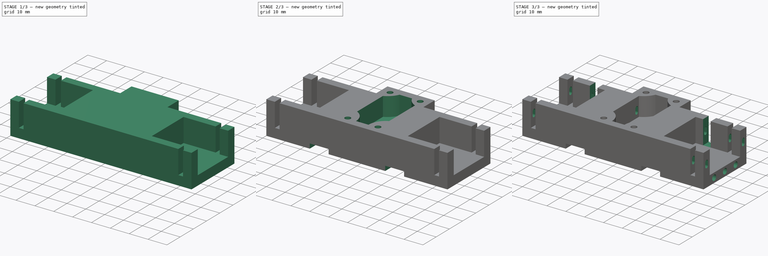
[diagram: build sequence overview — one tinted view per stage of 3, left to right]
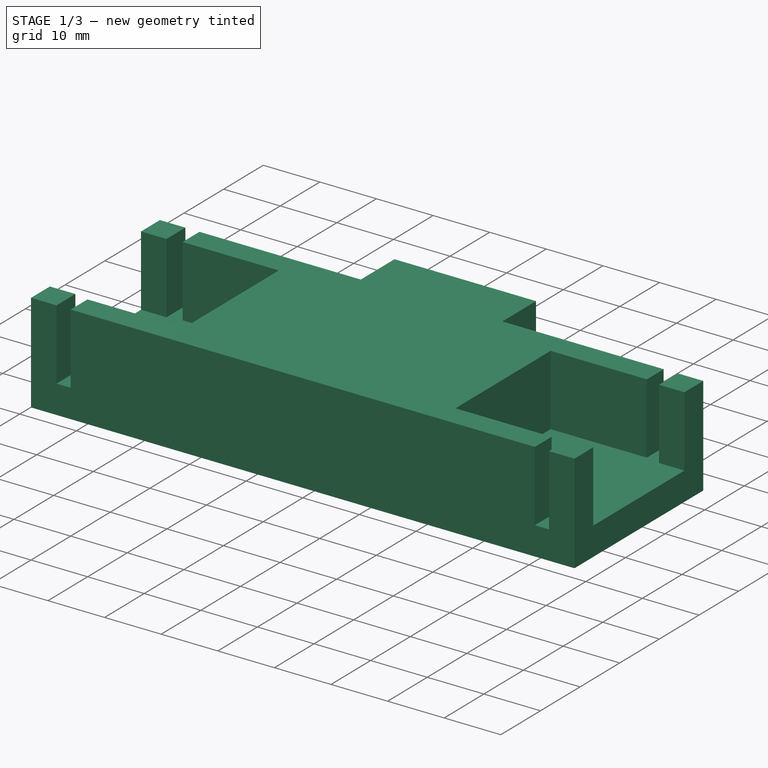
[diagram: stage 1 of 3 — iso view after this stage's code; geometry added in this stage tinted green]
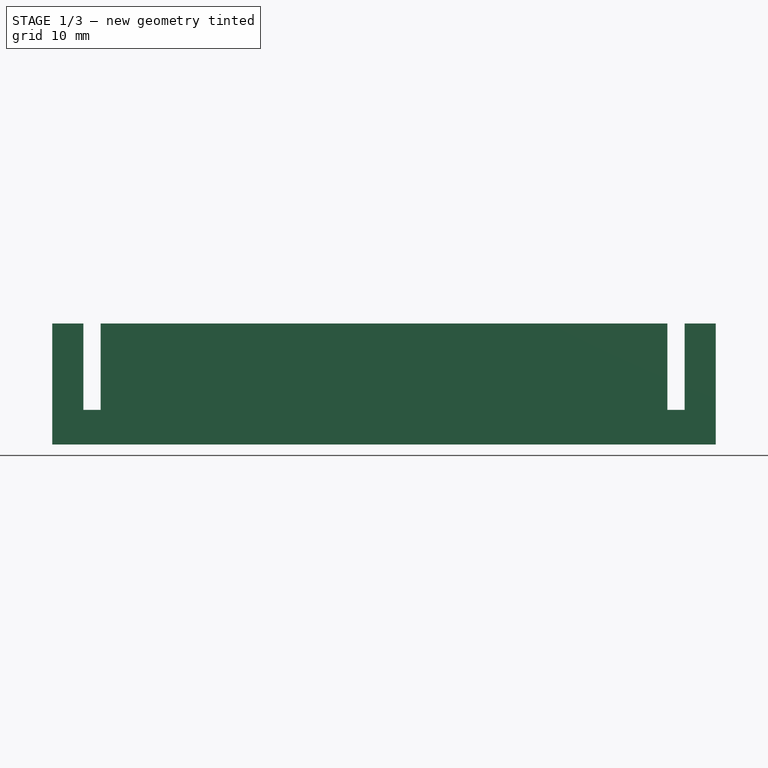
[diagram: stage 1 of 3 — front view after this stage's code; geometry added in this stage tinted green]
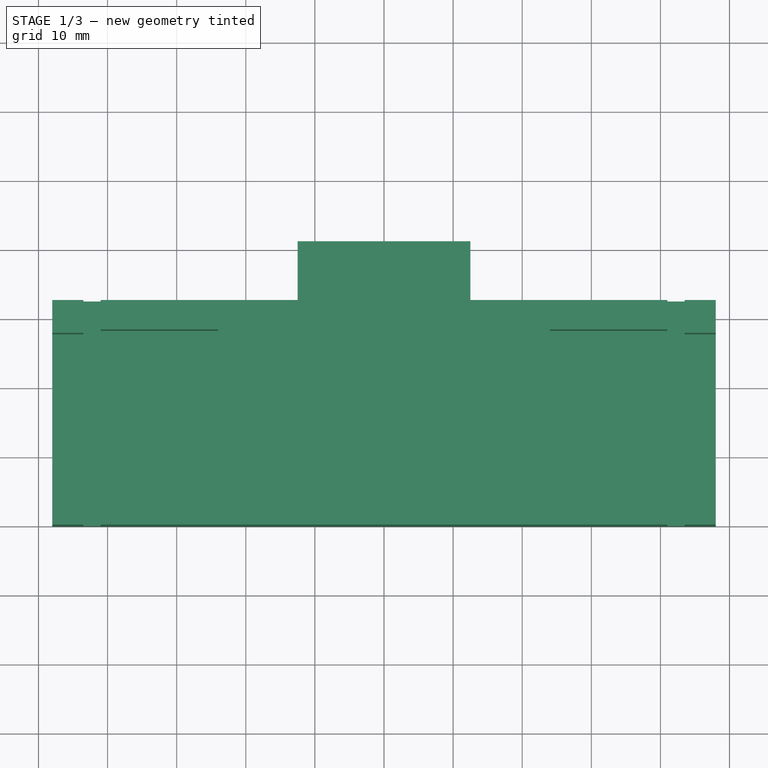
[diagram: stage 1 of 3 — top view after this stage's code; geometry added in this stage tinted green]
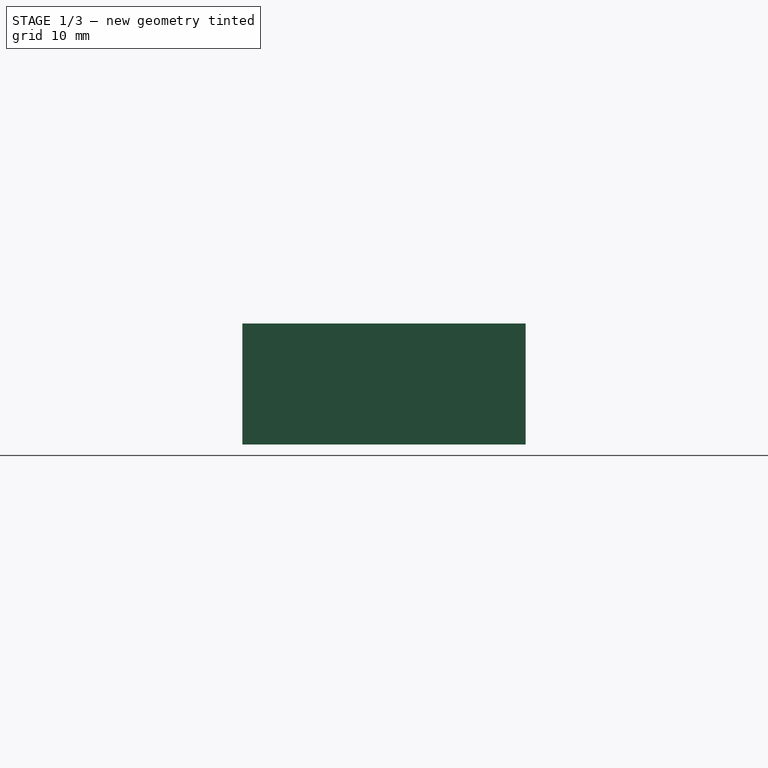
[diagram: stage 1 of 3 — right view after this stage's code; geometry added in this stage tinted green]
FCSTD DOCUMENT  (FreeCAD 0.21R33771 (Git))
Label: back-robot-plate
License: All rights reserved
LicenseURL: https://en.wikipedia.org/wiki/All_rights_reserved
objects: Sketcher::SketchObject×7, PartDesign::Pocket×6, PartDesign::Pad×1, PartDesign::Body×1
note: 22 computed .brp shape members not serialized (recipe doc carries the construction recipe); baked Part::Feature solids carry a one-line shape summary decoded from their .brp

FEATURE [Sketcher::SketchObject] Sketch
  FullyConstrained = true
  MapMode = 5
  Support = -> [XY_Plane]
  sketch-geometry (8):
    g0: LineSegment StartX=-48 StartY=0 StartZ=0 EndX=48 EndY=0 EndZ=0
    g1: LineSegment StartX=48 StartY=0 StartZ=0 EndX=48 EndY=32.5 EndZ=0
    g2: LineSegment StartX=48 StartY=32.5 StartZ=0 EndX=12.5 EndY=32.5 EndZ=0
    g3: LineSegment StartX=12.5 StartY=32.5 StartZ=0 EndX=12.5 EndY=41 EndZ=0
    g4: LineSegment StartX=12.5 StartY=41 StartZ=0 EndX=-12.5 EndY=41 EndZ=0
    g5: LineSegment StartX=-12.5 StartY=41 StartZ=0 EndX=-12.5 EndY=32.5 EndZ=0
    g6: LineSegment StartX=-12.5 StartY=32.5 StartZ=0 EndX=-48 EndY=32.5 EndZ=0
    g7: LineSegment StartX=-48 StartY=32.5 StartZ=0 EndX=-48 EndY=0 EndZ=0
  constraints (21):
    c: PointOnObject(g0,g-1)
    c: PointOnObject(g0,g-1)
    c: Coincident(g0,g1)
    c: Vertical(g1)
    c: Coincident(g1,g2)
    c: Horizontal(g2)
    c: Coincident(g2,g3)
    c: Vertical(g3)
    c: Coincident(g3,g4)
    c: Coincident(g4,g5)
    c: Coincident(g5,g6)
    c: Coincident(g6,g7)
    c: Vertical(g7)
    c: Coincident(g0,g7)
    c: Symmetric(g4,g3,g-2)
    c: Symmetric(g5,g2,g-2)
    c: Symmetric(g6,g1,g-2)
    c: DistanceX(g4,g4) = 25
    c: DistanceX(g0,g0) = 96
    c: DistanceY(g1,g1) = 32.5
    c: DistanceY(g0,g4) = 41
FEATURE [PartDesign::Pad] Pad
  Direction = (0,0,1)
  Length = 17.5
  Length2 = 10
  Profile = -> Sketch
  ReferenceAxis = -> Sketch [N_Axis]
  Type = 0
FEATURE [Sketcher::SketchObject] Sketch001
  ExternalGeometry = -> [Pad]
  FullyConstrained = true
  MapMode = 5
  Placement = pos=(0,0,17.5) rot=(0,0,1;0rad)
  Support = -> [Pad]
  sketch-geometry (24):
    g0: LineSegment StartX=-48 StartY=27.75 StartZ=0 EndX=-43.5 EndY=27.75 EndZ=0
    g1: LineSegment StartX=-43.5 StartY=27.75 StartZ=0 EndX=-43.5 EndY=32.5 EndZ=0
    g2: LineSegment StartX=-43.5 StartY=32.5 StartZ=0 EndX=-41 EndY=32.5 EndZ=0
    g3: LineSegment StartX=-41 StartY=32.5 StartZ=0 EndX=-41 EndY=28.25 EndZ=0
    g4: LineSegment StartX=-41 StartY=28.25 StartZ=0 EndX=-24 EndY=28.25 EndZ=0
    g5: LineSegment StartX=-24 StartY=28.25 StartZ=0 EndX=-24 EndY=4.25 EndZ=0
    g6: LineSegment StartX=-24 StartY=4.25 StartZ=0 EndX=-41 EndY=4.25 EndZ=0
    g7: LineSegment StartX=-41 StartY=4.25 StartZ=0 EndX=-41 EndY=0 EndZ=0
    g8: LineSegment StartX=-41 StartY=0 StartZ=0 EndX=-43.5 EndY=0 EndZ=0
    g9: LineSegment StartX=-43.5 StartY=0 StartZ=0 EndX=-43.5 EndY=4.75 EndZ=0
    g10: LineSegment StartX=-43.5 StartY=4.75 StartZ=0 EndX=-48 EndY=4.75 EndZ=0
    g11: LineSegment StartX=-48 StartY=4.75 StartZ=0 EndX=-48 EndY=27.75 EndZ=0
    g12: LineSegment StartX=24 StartY=28.25 StartZ=0 EndX=41 EndY=28.25 EndZ=0
    g13: LineSegment StartX=41 StartY=28.25 StartZ=0 EndX=41 EndY=32.5 EndZ=0
    g14: LineSegment StartX=41 StartY=32.5 StartZ=0 EndX=43.5 EndY=32.5 EndZ=0
    g15: LineSegment StartX=43.5 StartY=32.5 StartZ=0 EndX=43.5 EndY=27.75 EndZ=0
    g16: LineSegment StartX=43.5 StartY=27.75 StartZ=0 EndX=48 EndY=27.75 EndZ=0
    g17: LineSegment StartX=48 StartY=27.75 StartZ=0 EndX=48 EndY=4.75 EndZ=0
    g18: LineSegment StartX=48 StartY=4.75 StartZ=0 EndX=43.5 EndY=4.75 EndZ=0
    g19: LineSegment StartX=43.5 StartY=4.75 StartZ=0 EndX=43.5 EndY=0 EndZ=0
    g20: LineSegment StartX=43.5 StartY=0 StartZ=0 EndX=41 EndY=0 EndZ=0
    g21: LineSegment StartX=41 StartY=0 StartZ=0 EndX=41 EndY=4.25 EndZ=0
    g22: LineSegment StartX=41 StartY=4.25 StartZ=0 EndX=24 EndY=4.25 EndZ=0
    g23: LineSegment StartX=24 StartY=4.25 StartZ=0 EndX=24 EndY=28.25 EndZ=0
  constraints (72):
    c: PointOnObject(g0,g-3)
    c: Horizontal(g0)
    c: Coincident(g0,g1)
    c: PointOnObject(g1,g-4)
    c: Vertical(g1)
    c: Coincident(g1,g2)
    c: PointOnObject(g2,g-4)
    c: Coincident(g2,g3)
    c: Vertical(g3)
    c: Coincident(g3,g4)
    c: Horizontal(g4)
    c: Coincident(g4,g5)
    c: Vertical(g5)
    c: Coincident(g5,g6)
    c: Horizontal(g6)
    c: Coincident(g6,g7)
    c: PointOnObject(g7,g-1)
    c: Vertical(g7)
    c: Coincident(g7,g8)
    c: PointOnObject(g8,g-1)
    c: Coincident(g8,g9)
    c: Vertical(g9)
    c: Coincident(g9,g10)
    c: PointOnObject(g10,g-3)
    c: Horizontal(g10)
    c: Coincident(g10,g11)
    c: Coincident(g11,g0)
    c: DistanceX(g-4,g1) = 4.5
    c: DistanceX(g2,g2) = 2.5
    c: DistanceX(g4,g4) = 17
    c: Equal(g0,g10)
    c: Equal(g2,g8)
    c: DistanceY(g5,g5) = 24
    c: DistanceY(g11,g11) = 23
    c: Equal(g1,g9)
    c: Equal(g3,g7)
    c: Horizontal(g12)
    c: Coincident(g12,g13)
    c: PointOnObject(g13,g-5)
    c: Coincident(g13,g14)
    c: PointOnObject(g14,g-5)
    c: Coincident(g14,g15)
    c: Vertical(g15)
    c: Coincident(g15,g16)
    c: PointOnObject(g16,g-6)
    c: Coincident(g16,g17)
    c: PointOnObject(g17,g-6)
    c: Coincident(g17,g18)
    c: Coincident(g18,g19)
    c: PointOnObject(g19,g-1)
    c: Coincident(g19,g20)
    c: PointOnObject(g20,g-1)
    c: Coincident(g20,g21)
    c: Coincident(g21,g22)
    c: Horizontal(g22)
    c: Coincident(g22,g23)
    c: Coincident(g23,g12)
    c: Vertical(g23)
    c: Vertical(g21)
    c: Vertical(g19)
    c: Vertical(g13)
    c: Horizontal(g16)
    c: Horizontal(g18)
    c: Equal(g13,g21)
    c: DistanceY(g23,g23) = 24
    c: Equal(g19,g15)
    c: DistanceY(g17,g17) = 23
    c: DistanceX(g14,g-6) = 4.5
    c: DistanceX(g14,g14) = 2.5
    c: DistanceX(g12,g12) = 17
    c: Equal(g22,g12)
    c: Equal(g18,g16)
FEATURE [PartDesign::Pocket] Pocket
  BaseFeature = -> Pad
  Direction = (0,0,-1)
  Length = 12.5
  Length2 = 5
  Profile = -> Sketch001
  ReferenceAxis = -> Sketch001 [N_Axis]
  Type = 0
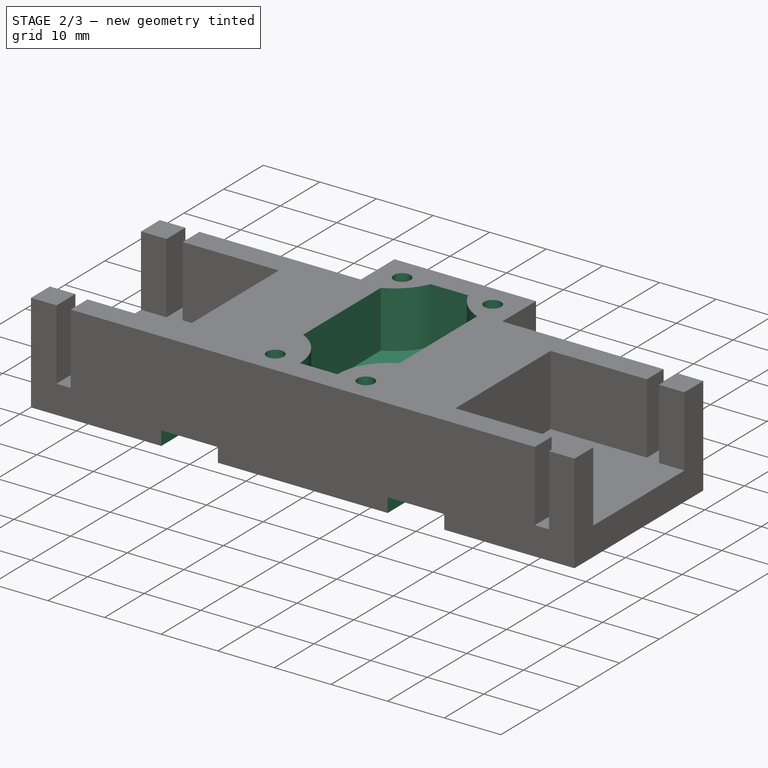
[diagram: stage 2 of 3 — iso view after this stage's code; geometry added in this stage tinted green]
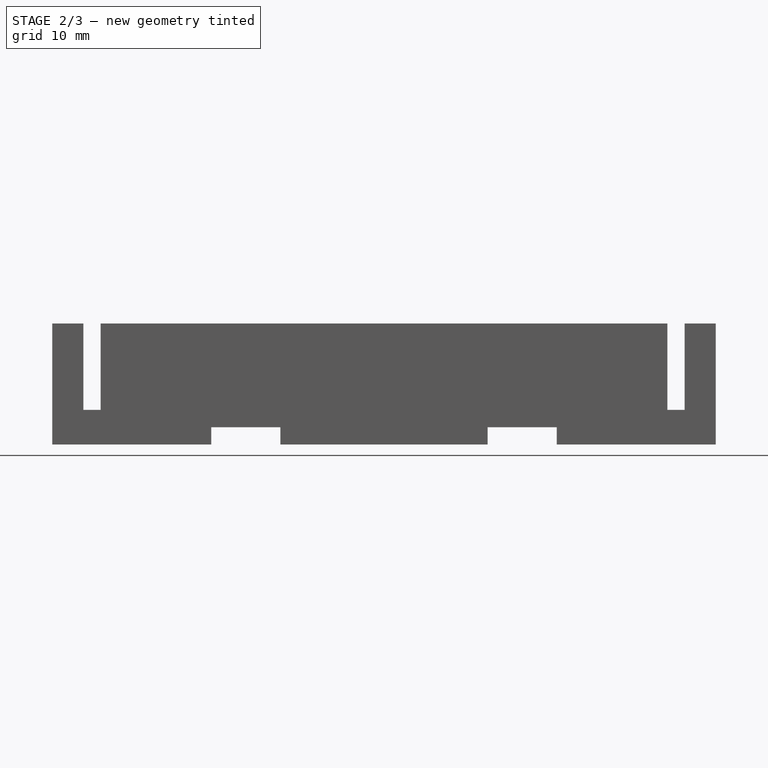
[diagram: stage 2 of 3 — front view after this stage's code; geometry added in this stage tinted green]
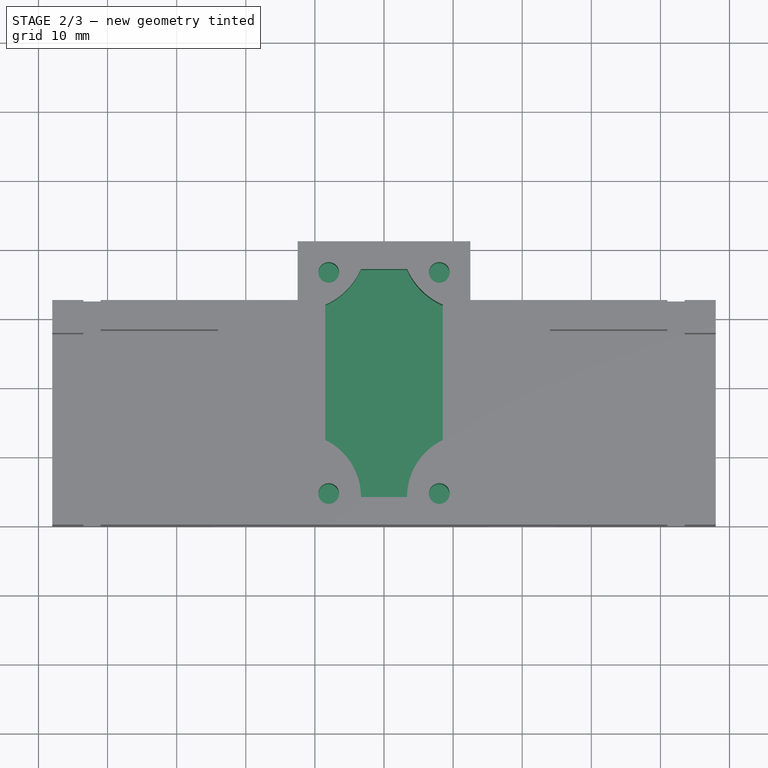
[diagram: stage 2 of 3 — top view after this stage's code; geometry added in this stage tinted green]
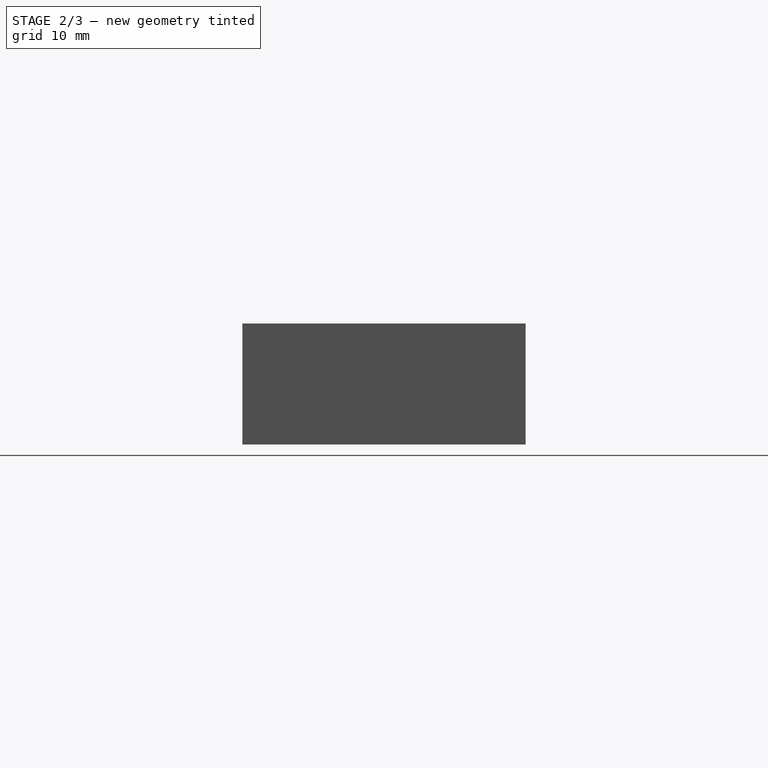
[diagram: stage 2 of 3 — right view after this stage's code; geometry added in this stage tinted green]
FEATURE [Sketcher::SketchObject] Sketch002
  ExternalGeometry = -> [Pocket]
  FullyConstrained = true
  MapMode = 5
  Placement = pos=(0,0,17.5) rot=(0,0,1;0rad)
  Support = -> [Pocket]
  sketch-geometry (8):
    g0: ArcOfCircle CenterX=-12.5 CenterY=41 CenterZ=0 NormalX=0 NormalY=0 NormalZ=1 AngleXU=0 Radius=10 StartAngle=5.12391 EndAngle=5.87167
    g1: ArcOfCircle CenterX=12.5 CenterY=41 CenterZ=0 NormalX=0 NormalY=0 NormalZ=1 AngleXU=0 Radius=10 StartAngle=3.55311 EndAngle=4.30087
    g2: LineSegment StartX=-3.33485 StartY=37 StartZ=0 EndX=3.33485 EndY=37 EndZ=0
    g3: LineSegment StartX=-8.5 StartY=31.8348 StartZ=0 EndX=-8.5 EndY=12.2462 EndZ=0
    g4: LineSegment StartX=8.5 StartY=31.8348 StartZ=0 EndX=8.5 EndY=12.2462 EndZ=0
    g5: ArcOfCircle CenterX=-12.5 CenterY=4 CenterZ=0 NormalX=0 NormalY=0 NormalZ=1 AngleXU=0 Radius=9.16515 StartAngle=-4.53e-14 EndAngle=1.11916
    g6: ArcOfCircle CenterX=12.5 CenterY=4 CenterZ=0 NormalX=0 NormalY=0 NormalZ=1 AngleXU=0 Radius=9.16515 StartAngle=2.02243 EndAngle=3.14159
    g7: LineSegment StartX=-3.33485 StartY=4 StartZ=0 EndX=3.33485 EndY=4 EndZ=0
  constraints (24):
    c: Coincident(g1,g-5)
    c: Coincident(g2,g0)
    c: Coincident(g2,g1)
    c: Horizontal(g2)
    c: Coincident(g3,g0)
    c: Vertical(g3)
    c: Coincident(g4,g1)
    c: Vertical(g4)
    c: Coincident(g5,g3)
    c: Coincident(g4,g6)
    c: Coincident(g7,g5)
    c: Coincident(g7,g6)
    c: Coincident(g0,g-4)
    c: Radius(g0) = 10
    c: Radius(g1) = 10
    c: DistanceY(g0,g0) = 4
    c: DistanceY(g5,g0) = 37
    c: Equal(g7,g2)
    c: Symmetric(g5,g6,g-2)
    c: Symmetric(g4,g3,g-2)
    c: DistanceX(g-4,g0) = 4
    c: DistanceX(g0,g5) = 0
    c: DistanceX(g-5,g6) = 0
    c: DistanceY(g-1,g6) = 4
FEATURE [PartDesign::Pocket] Pocket001
  BaseFeature = -> Pocket
  Direction = (0,0,-1)
  Length = 10
  Length2 = 5
  Profile = -> Sketch002
  ReferenceAxis = -> Sketch002 [N_Axis]
  Type = 0
FEATURE [Sketcher::SketchObject] Sketch003
  FullyConstrained = true
  MapMode = 5
  Placement = pos=(0,0,17.5) rot=(0,0,1;0rad)
  Support = -> [Pocket001]
  sketch-geometry (4):
    g0: Circle CenterX=-8 CenterY=36.5 CenterZ=0 NormalX=0 NormalY=0 NormalZ=1 AngleXU=0 Radius=1.5
    g1: Circle CenterX=8 CenterY=36.5 CenterZ=0 NormalX=0 NormalY=0 NormalZ=1 AngleXU=0 Radius=1.5
    g2: Circle CenterX=-8 CenterY=4.5 CenterZ=0 NormalX=0 NormalY=0 NormalZ=1 AngleXU=0 Radius=1.5
    g3: Circle CenterX=8 CenterY=4.5 CenterZ=0 NormalX=0 NormalY=0 NormalZ=1 AngleXU=0 Radius=1.5
  constraints (10):
    c: Symmetric(g0,g1,g-2)
    c: Symmetric(g2,g3,g-2)
    c: DistanceX(g0,g1) = 16
    c: DistanceX(g2,g3) = 16
    c: DistanceY(g3,g1) = 32
    c: Equal(g0,g1)
    c: Equal(g1,g3)
    c: Equal(g3,g2)
    c: Diameter(g0) = 3
    c: DistanceY(g-1,g2) = 4.5
FEATURE [PartDesign::Pocket] Pocket002
  BaseFeature = -> Pocket001
  Direction = (0,0,-1)
  Length = 10
  Length2 = 5
  Profile = -> Sketch003
  ReferenceAxis = -> Sketch003 [N_Axis]
  Type = 0
FEATURE [Sketcher::SketchObject] Sketch004
  FullyConstrained = true
  MapMode = 5
  Placement = pos=(0,0,0) rot=(1,0,0;1.5708rad)
  Support = -> [Pocket002]
  sketch-geometry (8):
    g0: LineSegment StartX=-25 StartY=0 StartZ=0 EndX=-15 EndY=0 EndZ=0
    g1: LineSegment StartX=-15 StartY=0 StartZ=0 EndX=-15 EndY=2.5 EndZ=0
    g2: LineSegment StartX=-15 StartY=2.5 StartZ=0 EndX=-25 EndY=2.5 EndZ=0
    g3: LineSegment StartX=-25 StartY=2.5 StartZ=0 EndX=-25 EndY=0 EndZ=0
    g4: LineSegment StartX=15 StartY=0 StartZ=0 EndX=25 EndY=0 EndZ=0
    g5: LineSegment StartX=25 StartY=0 StartZ=0 EndX=25 EndY=2.5 EndZ=0
    g6: LineSegment StartX=25 StartY=2.5 StartZ=0 EndX=15 EndY=2.5 EndZ=0
    g7: LineSegment StartX=15 StartY=2.5 StartZ=0 EndX=15 EndY=0 EndZ=0
  constraints (22):
    c: Coincident(g0,g1)
    c: Coincident(g1,g2)
    c: Coincident(g2,g3)
    c: Coincident(g3,g0)
    c: Horizontal(g0)
    c: Horizontal(g2)
    c: Vertical(g1)
    c: Vertical(g3)
    c: PointOnObject(g0,g-1)
    c: Coincident(g4,g5)
    c: Coincident(g5,g6)
    c: Coincident(g6,g7)
    c: Coincident(g7,g4)
    c: Horizontal(g4)
    c: Horizontal(g6)
    c: Vertical(g5)
    c: Vertical(g7)
    c: Symmetric(g0,g4,g-2)
    c: DistanceY(g5,g5) = 2.5
    c: DistanceX(g2,g2) = 10
    c: Symmetric(g1,g6,g-2)
    c: DistanceX(g1,g6) = 30
FEATURE [PartDesign::Pocket] Pocket003
  BaseFeature = -> Pocket002
  Direction = (0,1,-2e-16)
  Length = 5
  Length2 = 5
  Profile = -> Sketch004
  ReferenceAxis = -> Sketch004 [N_Axis]
  Type = 1
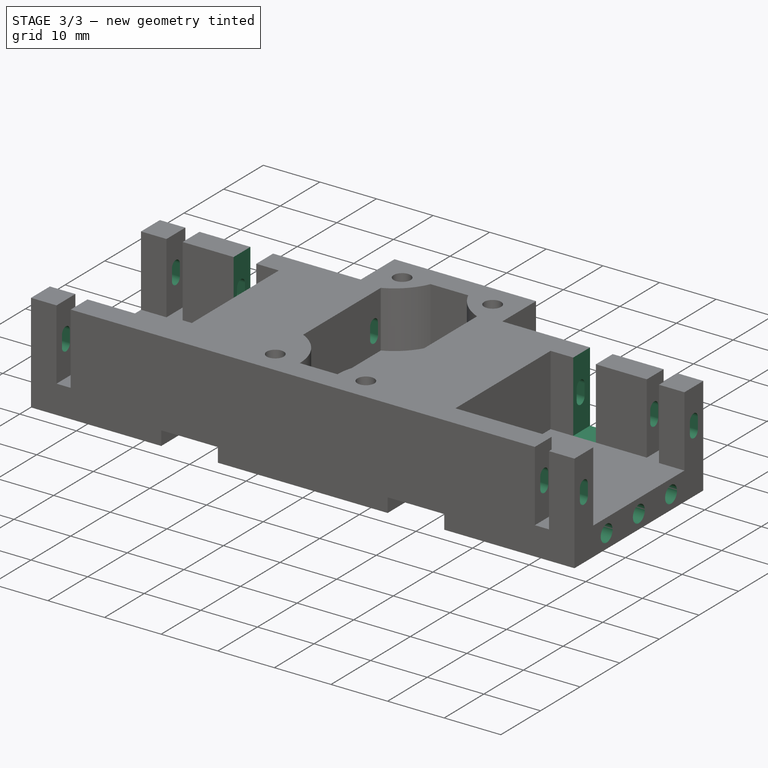
[diagram: stage 3 of 3 — iso view after this stage's code; geometry added in this stage tinted green]
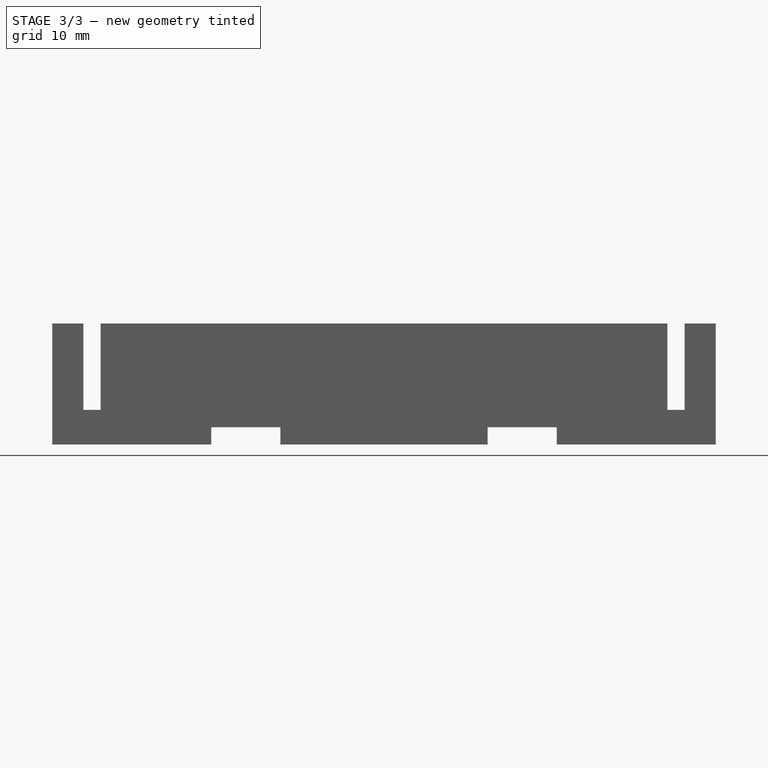
[diagram: stage 3 of 3 — front view after this stage's code; geometry added in this stage tinted green]
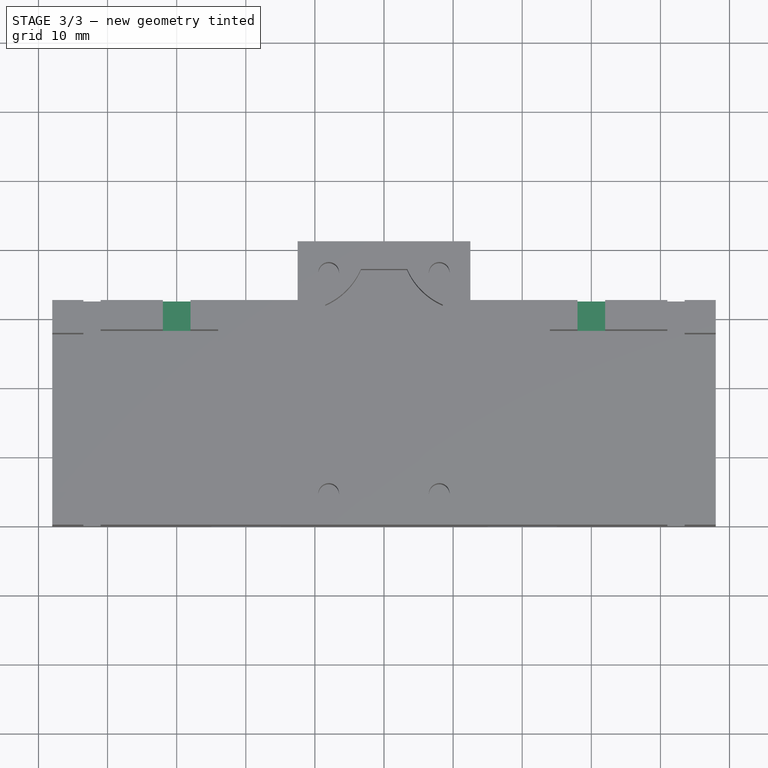
[diagram: stage 3 of 3 — top view after this stage's code; geometry added in this stage tinted green]
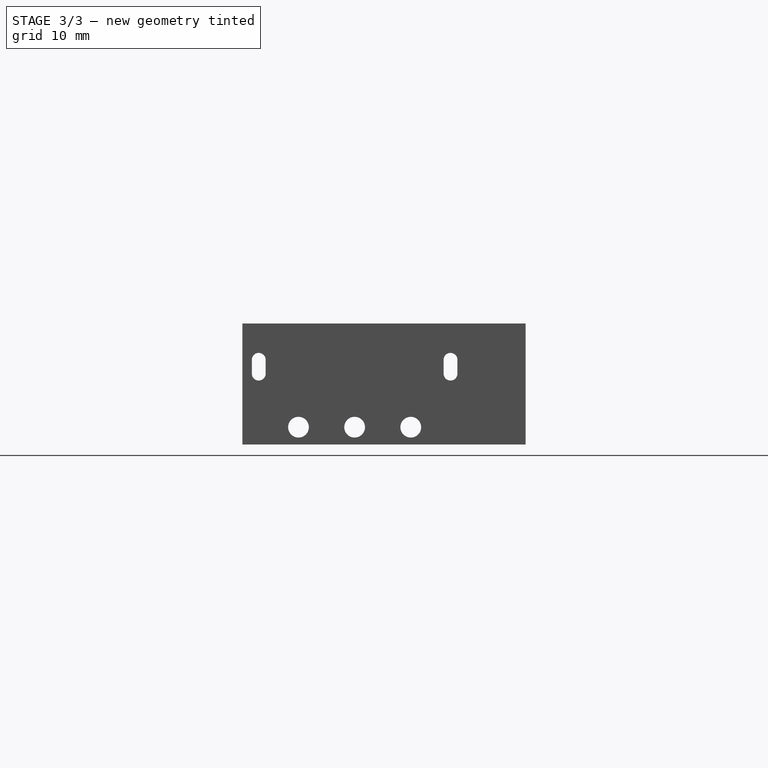
[diagram: stage 3 of 3 — right view after this stage's code; geometry added in this stage tinted green]
FEATURE [Sketcher::SketchObject] Sketch010
  ExternalGeometry = -> [Pocket003]
  FullyConstrained = true
  MapMode = 5
  Placement = pos=(0,0,17.5) rot=(0,0,1;0rad)
  sketch-geometry (8):
    g0: LineSegment StartX=-28 StartY=32.5 StartZ=0 EndX=-32 EndY=32.5 EndZ=0
    g1: LineSegment StartX=-32 StartY=32.5 StartZ=0 EndX=-32 EndY=28.25 EndZ=0
    g2: LineSegment StartX=-32 StartY=28.25 StartZ=0 EndX=-28 EndY=28.25 EndZ=0
    g3: LineSegment StartX=-28 StartY=28.25 StartZ=0 EndX=-28 EndY=32.5 EndZ=0
    g4: LineSegment StartX=28 StartY=32.5 StartZ=0 EndX=32 EndY=32.5 EndZ=0
    g5: LineSegment StartX=32 StartY=32.5 StartZ=0 EndX=32 EndY=28.25 EndZ=0
    g6: LineSegment StartX=32 StartY=28.25 StartZ=0 EndX=28 EndY=28.25 EndZ=0
    g7: LineSegment StartX=28 StartY=28.25 StartZ=0 EndX=28 EndY=32.5 EndZ=0
  constraints (23):
    c: Coincident(g1,g2)
    c: Coincident(g2,g3)
    c: Coincident(g3,g0)
    c: Horizontal(g0)
    c: Horizontal(g2)
    c: Vertical(g1)
    c: Vertical(g3)
    c: Coincident(g4,g5)
    c: Coincident(g5,g6)
    c: Coincident(g6,g7)
    c: Horizontal(g4)
    c: Horizontal(g6)
    c: Vertical(g5)
    c: Vertical(g7)
    c: DistanceX(g4,g4) = 4
    c: Coincident(g4,g7)
    c: Equal(g0,g4)
    c: Coincident(g0,g1)
    c: Symmetric(g0,g4,g-2)
    c: PointOnObject(g0,g-4)
    c: PointOnObject(g2,g-3)
    c: DistanceX(g-4,g0) = 9
    c: PointOnObject(g6,g-6)
FEATURE [PartDesign::Pocket] Pocket008
  BaseFeature = -> Pocket003
  Direction = (0,0,-1)
  Length = 12.5
  Length2 = 5
  Profile = -> Sketch010
  ReferenceAxis = -> Sketch010 [N_Axis]
  Type = 0
FEATURE [Sketcher::SketchObject] Sketch011
  ExternalGeometry = -> [Pocket008]
  FullyConstrained = true
  MapMode = 5
  Placement = pos=(48,0,0) rot=(0.57735,0.57735,0.57735;2.0944rad)
  Support = -> [Pocket008]
  sketch-geometry (17):
    g0: Circle CenterX=8.125 CenterY=2.5 CenterZ=0 NormalX=0 NormalY=0 NormalZ=1 AngleXU=0 Radius=1.5
    g1: Circle CenterX=16.25 CenterY=2.5 CenterZ=0 NormalX=0 NormalY=0 NormalZ=1 AngleXU=0 Radius=1.5
    g2: Circle CenterX=24.375 CenterY=2.5 CenterZ=0 NormalX=0 NormalY=0 NormalZ=1 AngleXU=0 Radius=1.5
    g3: LineSegment StartX=16.25 StartY=5 StartZ=0 EndX=16.25 EndY=0 EndZ=0
    g4: LineSegment StartX=0 StartY=2.5 StartZ=0 EndX=32.5 EndY=2.5 EndZ=0
    g5: ArcOfCircle CenterX=30.125 CenterY=12.25 CenterZ=0 NormalX=0 NormalY=0 NormalZ=1 AngleXU=0 Radius=1 StartAngle=5.227e-13 EndAngle=3.14159
    g6: ArcOfCircle CenterX=30.125 CenterY=10.25 CenterZ=0 NormalX=0 NormalY=0 NormalZ=1 AngleXU=0 Radius=1 StartAngle=3.14159 EndAngle=6.28319
    g7: LineSegment StartX=29.125 StartY=12.25 StartZ=0 EndX=29.125 EndY=10.25 EndZ=0
    g8: LineSegment StartX=31.125 StartY=10.25 StartZ=0 EndX=31.125 EndY=12.25 EndZ=0
    g9: ArcOfCircle CenterX=2.375 CenterY=12.25 CenterZ=0 NormalX=0 NormalY=0 NormalZ=1 AngleXU=0 Radius=1 StartAngle=-7.55e-14 EndAngle=3.14159
    g10: ArcOfCircle CenterX=2.375 CenterY=10.25 CenterZ=0 NormalX=0 NormalY=0 NormalZ=1 AngleXU=0 Radius=1 StartAngle=3.14159 EndAngle=6.28319
    g11: LineSegment StartX=1.375 StartY=12.25 StartZ=0 EndX=1.375 EndY=10.25 EndZ=0
    g12: LineSegment StartX=3.375 StartY=10.25 StartZ=0 EndX=3.375 EndY=12.25 EndZ=0
    g13: LineSegment StartX=2.375 StartY=17.5 StartZ=0 EndX=2.375 EndY=0 EndZ=0
    g14: LineSegment StartX=30.125 StartY=17.5 StartZ=0 EndX=30.125 EndY=0 EndZ=0
    g15: LineSegment StartX=2.375 StartY=11.25 StartZ=0 EndX=4.75 EndY=11.25 EndZ=0
    g16: LineSegment StartX=27.75 StartY=11.25 StartZ=0 EndX=30.125 EndY=11.25 EndZ=0
  constraints (43):
    c: Equal(g0,g1)
    c: Equal(g1,g2)
    c: Diameter(g0) = 3
    c: PointOnObject(g3,g-1)
    c: Vertical(g3)
    c: Symmetric(g-4,g-4,g3)
    c: PointOnObject(g4,g-2)
    c: PointOnObject(g4,g-5)
    c: Symmetric(g3,g3,g4)
    c: PointOnObject(g1,g4)
    c: PointOnObject(g1,g3)
    c: Symmetric(g4,g1,g0)
    c: Symmetric(g1,g4,g2)
    c: Tangent(g5,g7) = -1.5708
    c: Tangent(g7,g6) = -1.5708
    c: Tangent(g6,g8) = -1.5708
    c: Tangent(g8,g5) = -1.5708
    c: Equal(g5,g6)
    c: DistanceX(g5,g5) = 2
    c: DistanceY(g8,g8) = 2
    c: Tangent(g9,g11) = -1.5708
    c: Tangent(g11,g10) = -1.5708
    c: Tangent(g10,g12) = -1.5708
    c: Tangent(g12,g9) = -1.5708
    c: Equal(g9,g10)
    c: DistanceX(g9,g9) = 2
    c: DistanceY(g12,g12) = 2
    c: PointOnObject(g13,g-1)
    c: Vertical(g13)
    c: Symmetric(g-6,g-6,g13)
    c: PointOnObject(g9,g13)
    c: PointOnObject(g10,g13)
    c: PointOnObject(g14,g-1)
    c: Vertical(g14)
    c: Symmetric(g-3,g-5,g14)
    c: PointOnObject(g5,g14)
    c: PointOnObject(g6,g14)
    c: Horizontal(g15)
    c: Symmetric(g10,g9,g15)
    c: Symmetric(g-7,g-7,g15)
    c: Horizontal(g16)
    c: Symmetric(g6,g5,g16)
    c: Symmetric(g-8,g-8,g16)
FEATURE [PartDesign::Pocket] Pocket009
  BaseFeature = -> Pocket008
  Direction = (-1,0,0)
  Length = 5
  Length2 = 5
  Profile = -> Sketch011
  ReferenceAxis = -> Sketch011 [N_Axis]
  Type = 1
FEATURE [PartDesign::Body] Body
  Group = -> [Sketch,Pad,Sketch001,Pocket,Sketch002,Pocket001,Sketch003,Pocket002,Sketch004,Pocket003,Sketch010,Pocket008,Sketch011,Pocket009]
  Origin = -> Origin
  Tip = -> Pocket009
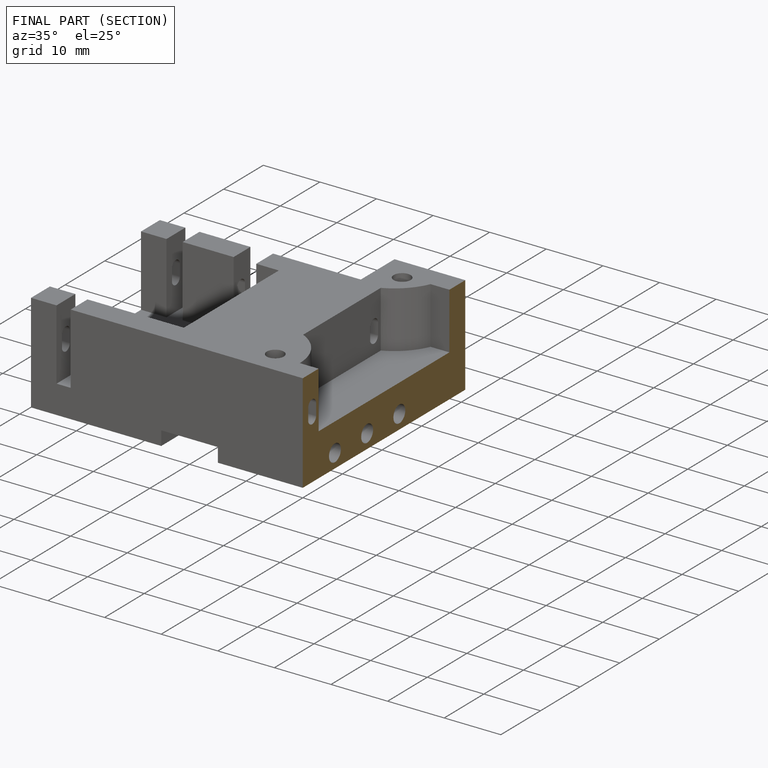
[diagram: finished part — half-section view (interior)]
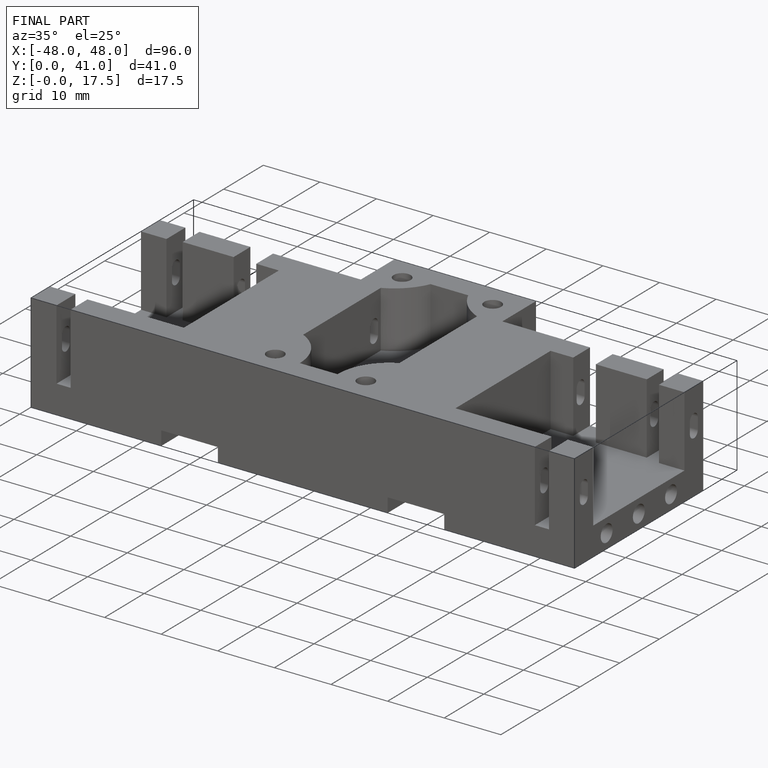
[diagram: finished part — iso view with bounding-box wireframe]
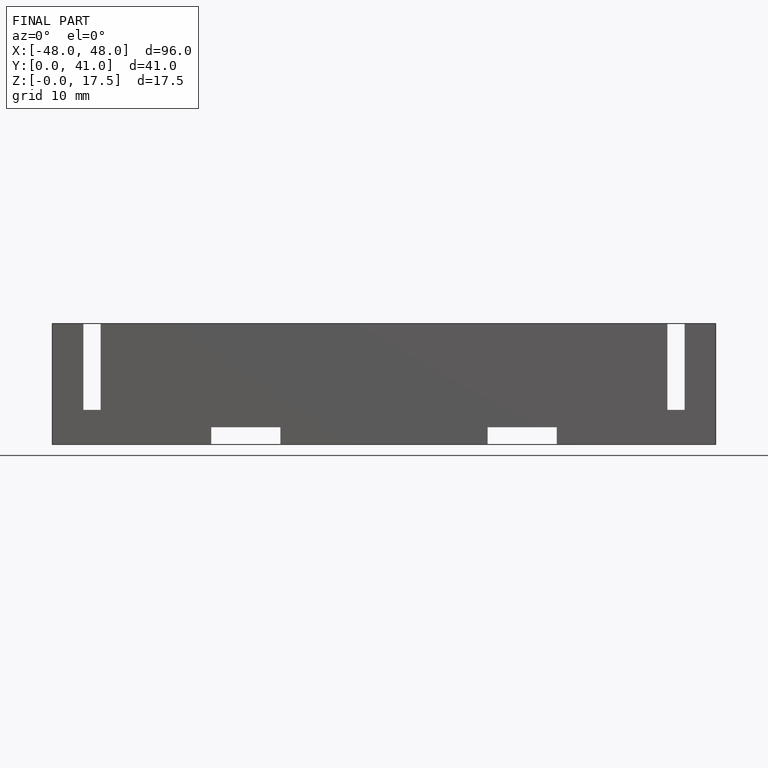
[diagram: finished part — front view with bounding-box wireframe]
